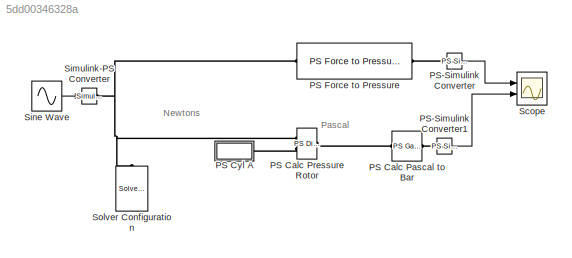
MODEL slx_5dd00346328a
KIND model
CONFIG AbsTol = auto
CONFIG EnableMultiTasking = off
CONFIG FixedStep = auto
CONFIG MaxStep = auto
CONFIG MinStep = auto
CONFIG RelTol = 1e-3
CONFIG SampleTimeConstraint = Unconstrained
CONFIG SolverName = VariableStepAuto
CONFIG StartTime = 0.0
CONFIG StopTime = 10.0
BLOCK [Reference] PS Calc Pascal to Bar  REF=fl_ps_legacy_lib/Legacy Physical
Signals/Functions/PS Gain
  Ports = [0, 0, 0, 0, 0, 1, 1]
  SourceBlock = fl_ps_legacy_lib/Legacy Physical\nSignals/Functions/PS Gain
  SourceProductBaseCode = PW,SS,VE
  SourceType = PS Gain
BLOCK [Reference] PS Calc Pressure Rotor  REF=fl_ps_legacy_lib/Legacy Physical
Signals/Functions/PS Divide
  Ports = [0, 0, 0, 0, 0, 2, 1]
  SourceBlock = fl_ps_legacy_lib/Legacy Physical\nSignals/Functions/PS Divide
  SourceProductBaseCode = PW,SS,VE
  SourceType = PS Divide
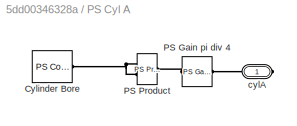
BLOCK [SubSystem] PS Cyl A
  Ports = [0, 0, 0, 0, 0, 0, 1]
  RequestExecContextInheritance = off
BLOCK [Reference] PS Cyl A/Cylinder Bore  REF=fl_lib/Physical Signals/Sources/PS Constant
  Ports = [0, 0, 0, 0, 0, 0, 1]
  SourceBlock = fl_lib/Physical Signals/Sources/PS Constant
  SourceProductBaseCode = PW,SS,VE
  SourceType = PS Constant
BLOCK [Reference] PS Cyl A/PS Gain pi div 4  REF=fl_ps_legacy_lib/Legacy Physical
Signals/Functions/PS Gain
  Ports = [0, 0, 0, 0, 0, 1, 1]
  SourceBlock = fl_ps_legacy_lib/Legacy Physical\nSignals/Functions/PS Gain
  SourceProductBaseCode = PW,SS,VE
  SourceType = PS Gain
BLOCK [Reference] PS Cyl A/PS Product  REF=fl_ps_legacy_lib/Legacy Physical
Signals/Functions/PS Product
  Ports = [0, 0, 0, 0, 0, 2, 1]
  SourceBlock = fl_ps_legacy_lib/Legacy Physical\nSignals/Functions/PS Product
  SourceProductBaseCode = PW,SS,VE
  SourceType = PS Product
BLOCK [PMIOPort] PS Cyl A/cylA
  Side = Right
BLOCK [Reference] PS Force to Pressure  REF=Custom_lib/PS Force to Pressure
  Ports = [0, 0, 0, 0, 0, 1, 1]
  SourceBlock = Custom_lib/PS Force to Pressure
  SourceType = PS Force to Pressure
BLOCK [Reference] PS-Simulink Converter  REF=nesl_utility/PS-Simulink
Converter
  Ports = [0, 1, 0, 0, 0, 1]
  SourceBlock = nesl_utility/PS-Simulink\nConverter
  SourceProductBaseCode = SS,PW,VE
  SourceType = PS-Simulink\nConverter
BLOCK [Reference] PS-Simulink Converter1  REF=nesl_utility/PS-Simulink
Converter
  Ports = [0, 1, 0, 0, 0, 1]
  SourceBlock = nesl_utility/PS-Simulink\nConverter
  SourceProductBaseCode = SS,PW,VE
  SourceType = PS-Simulink\nConverter
BLOCK [Scope] Scope
  Floating = off
  NumInputPorts = 2
  Ports = [2]
  ScopeSpecificationString = Simulink.scopes.TimeScopeBlockCfg('CurrentConfiguration', extmgr.ConfigurationSet(extmgr.Configuration('Core','General UI',true),extmgr.Configuration('Core','Source UI',true),extmgr.Configuration('Sources','WiredSimulink',true),extmgr.Configuration('Visuals','Time Domain',true,'SerializedDisplays',{struct('MinYLimReal','-158.59878','MaxYLimReal','159.03282','YLabelReal','','MinYLimMag',' 0.00000',...<+1464ch>
BLOCK [Reference] Simulink-PS Converter  REF=nesl_utility/Simulink-PS
Converter
  Ports = [1, 0, 0, 0, 0, 0, 1]
  SourceBlock = nesl_utility/Simulink-PS\nConverter
  SourceProductBaseCode = SS,PW,VE
  SourceType = Simulink-PS\nConverter
BLOCK [Sin] Sine Wave
  Amplitude = 1e3
  Ports = [0, 1]
  SampleTime = 0
BLOCK [Reference] Solver Configuration  REF=nesl_utility/Solver
Configuration
  NameLocation = right
  Ports = [0, 0, 0, 0, 0, 0, 1]
  SourceBlock = nesl_utility/Solver\nConfiguration
  SourceProductBaseCode = SS,PW,VE
  SourceType = Solver\nConfiguration
ANNOTATION (root): Newtons
ANNOTATION (root): Pascal
LINE PS-Simulink Converter1:1 -> Scope:2
LINE PS-Simulink Converter:1 -> Scope:1
LINE Sine Wave:1 -> Simulink-PS Converter:1
PLINE PS Calc Pascal to Bar:LConn1 -- PS Calc Pressure Rotor:RConn1
PLINE PS Calc Pascal to Bar:RConn1 -- PS-Simulink Converter1:LConn1
PNET net1: PS Calc Pressure Rotor:LConn1 -- PS Force to Pressure:LConn1 -- Simulink-PS Converter:RConn1 -- Solver Configuration:RConn1
PLINE PS Calc Pressure Rotor:LConn2 -- PS Cyl A:RConn1
PNET net2: PS Cyl A/Cylinder Bore:RConn1 -- PS Cyl A/PS Product:LConn1 -- PS Cyl A/PS Product:LConn2
PLINE PS Cyl A/PS Gain pi div 4:LConn1 -- PS Cyl A/PS Product:RConn1
PLINE PS Cyl A/PS Gain pi div 4:RConn1 -- PS Cyl A/cylA:RConn1
PLINE PS Force to Pressure:RConn1 -- PS-Simulink Converter:LConn1
note: PNET lines group multi-terminal physical nets as a canonical sorted terminal list (undirected conserving connections); 2-terminal nets keep the pairwise PLINE form
